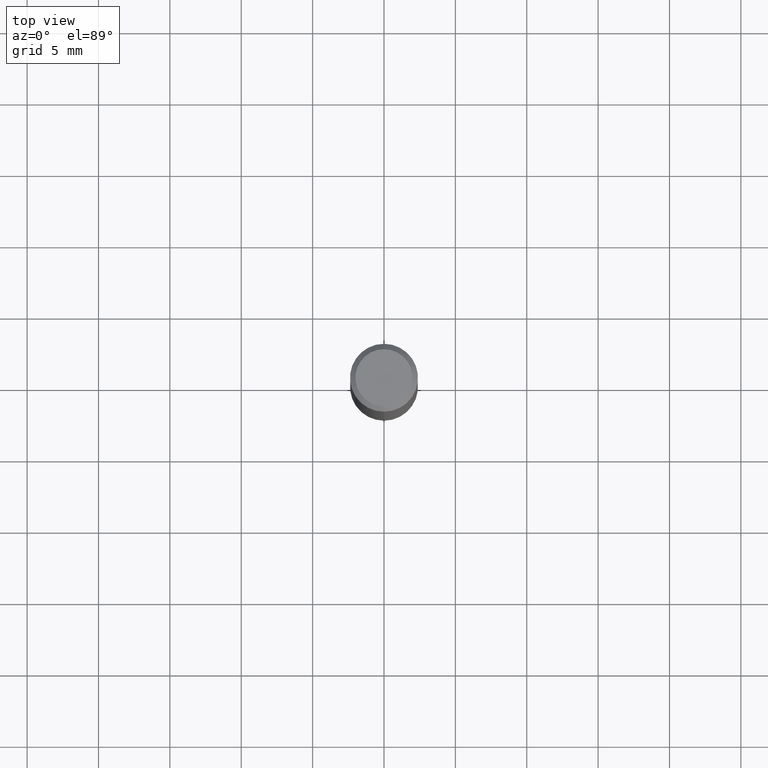
[diagram: clean part render]
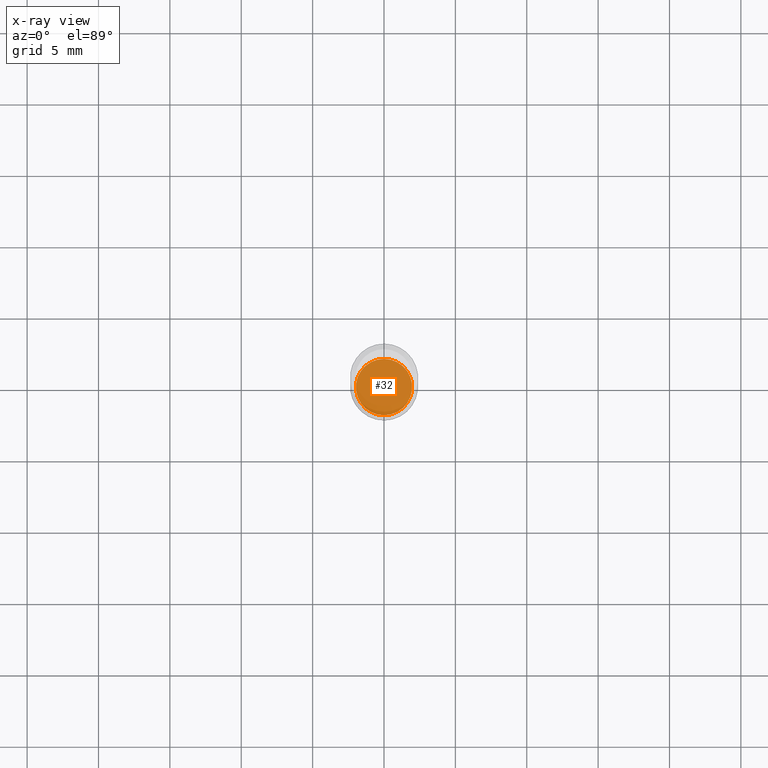
[diagram: x-ray — body ghosted, one internal face saturated and labeled with its STEP entity id]
A machine part, top view, then the same camera in x-ray: the body is ghosted and one INTERNAL B-rep face — a face not visible from any outside direction — is saturated and labeled: STEP entity #32.
In plain terms, the highlighted planar face has unit normal (-0, 0, 1).
Its self-contained STEP definition (entity closure, byte-faithful):
#32 = ADVANCED_FACE ( 'NONE', ( #125 ), #130, .F. ) ;
#40 = CARTESIAN_POINT ( 'NONE',  ( -5.418779037884175500E-16, -0.07760000000000523424, -1.499999999999999778 ) ) ;
#42 = CIRCLE ( 'NONE', #328, 0.07760000000000000231 ) ;
#93 = CARTESIAN_POINT ( 'NONE',  ( 3.667533844320514090E-29, -5.238180576981300827E-15, -1.499999999999999778 ) ) ;
#121 = DIRECTION ( 'NONE',  ( -6.982962677686265922E-15, -1.000000000000000000, 3.492120384654201603E-15 ) ) ;
#125 = FACE_OUTER_BOUND ( 'NONE', #364, .T. ) ;
#130 = PLANE ( 'NONE',  #135 ) ;
#135 = AXIS2_PLACEMENT_3D ( 'NONE', #93, #327, #121 ) ;
#166 = ORIENTED_EDGE ( 'NONE', *, *, #216, .F. ) ;
#172 = DIRECTION ( 'NONE',  ( -6.982962677686265922E-15, -1.000000000000000000, 3.520422672247761757E-15 ) ) ;
#178 = EDGE_CURVE ( 'NONE', #432, #356, #352, .T. ) ;
#189 = ORIENTED_EDGE ( 'NONE', *, *, #178, .F. ) ;
#216 = EDGE_CURVE ( 'NONE', #356, #432, #42, .T. ) ;
#242 = CARTESIAN_POINT ( 'NONE',  ( 5.531575197892741031E-16, 0.07759999999999475651, -1.500000000000000444 ) ) ;
#260 = DIRECTION ( 'NONE',  ( -2.445022562880343100E-29, 3.492120384654201603E-15, 1.000000000000000000 ) ) ;
#327 = DIRECTION ( 'NONE',  ( -2.445022562880342820E-29, 3.492120384654201603E-15, 1.000000000000000000 ) ) ;
#328 = AXIS2_PLACEMENT_3D ( 'NONE', #417, #260, #422 ) ;
#352 = CIRCLE ( 'NONE', #477, 0.07760000000000000231 ) ;
#356 = VERTEX_POINT ( 'NONE', #40 ) ;
#364 = EDGE_LOOP ( 'NONE', ( #166, #189 ) ) ;
#417 = CARTESIAN_POINT ( 'NONE',  ( 3.667533844320514651E-29, -5.238180576981301616E-15, -1.500000000000000222 ) ) ;
#419 = CARTESIAN_POINT ( 'NONE',  ( 3.667533844320514651E-29, -5.238180576981301616E-15, -1.500000000000000222 ) ) ;
#422 = DIRECTION ( 'NONE',  ( -6.982962677686265922E-15, -1.000000000000000000, 3.520422672247761757E-15 ) ) ;
#432 = VERTEX_POINT ( 'NONE', #242 ) ;
#456 = DIRECTION ( 'NONE',  ( -2.445022562880343100E-29, 3.492120384654201603E-15, 1.000000000000000000 ) ) ;
#477 = AXIS2_PLACEMENT_3D ( 'NONE', #419, #456, #172 ) ;